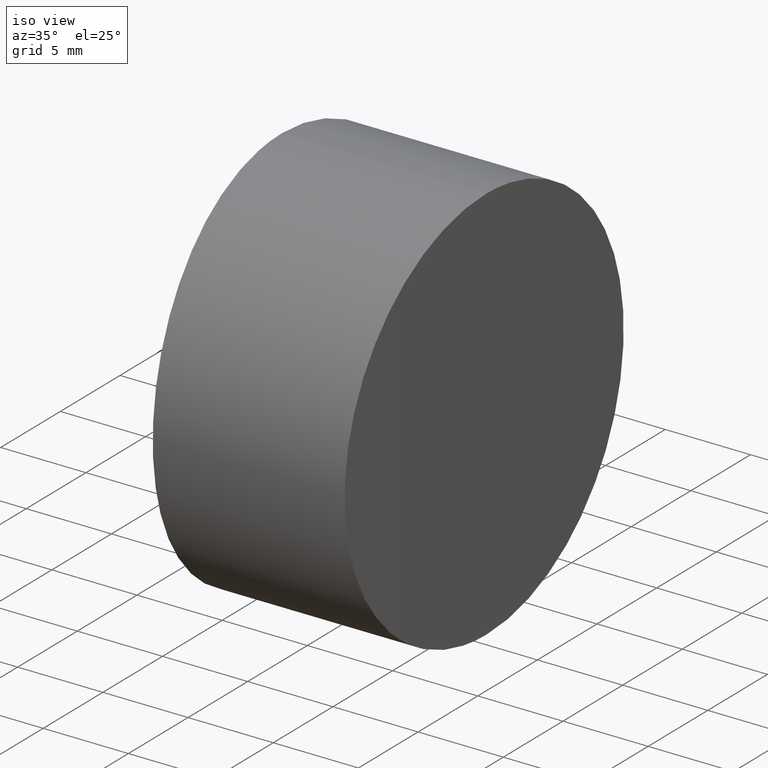
[diagram: clean part render]
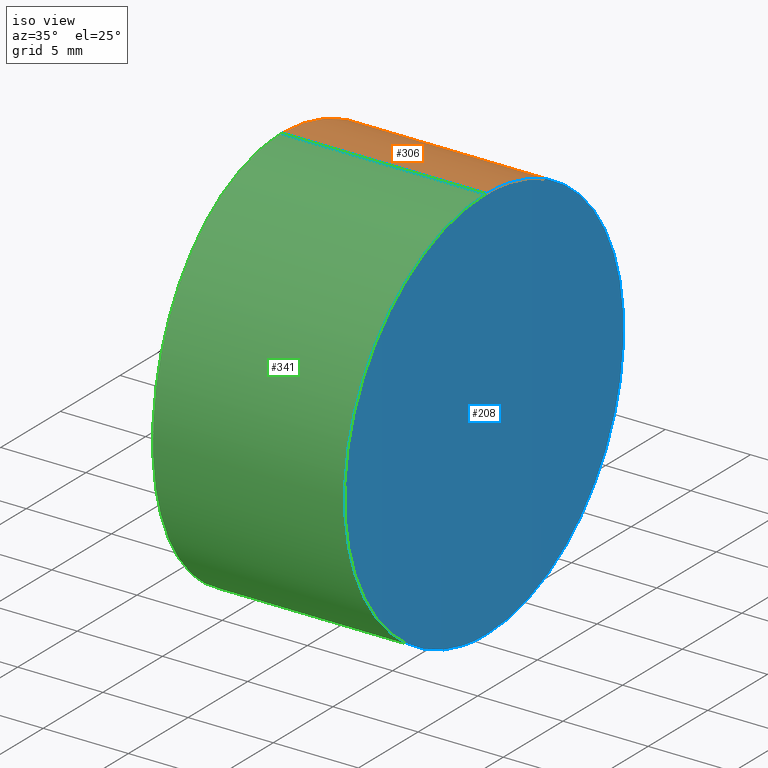
[diagram: same view with three faces highlighted in distinct colors, each labeled with its STEP entity id]
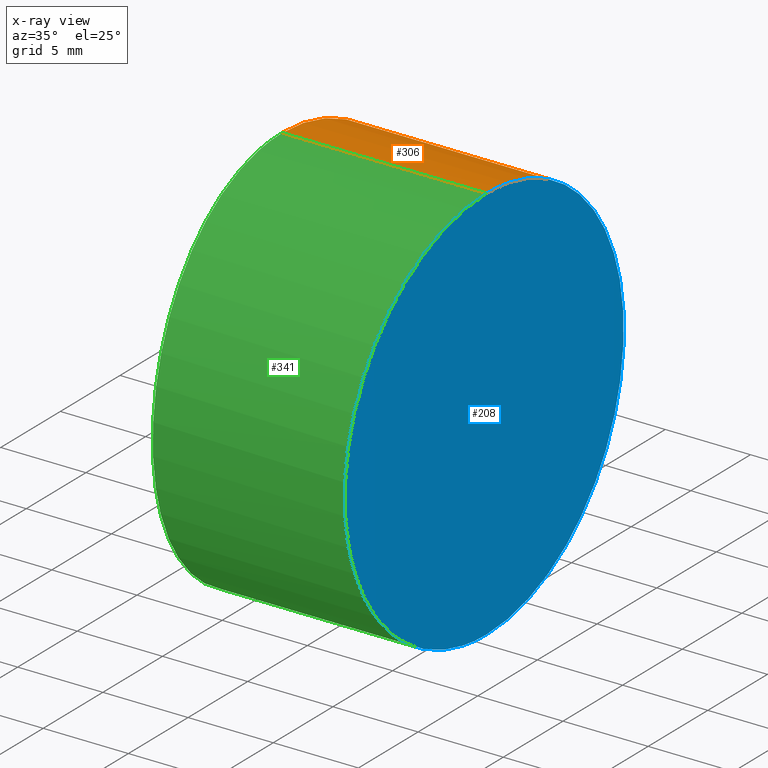
[diagram: x-ray of the same camera — body ghosted, the three highlighted faces saturated]
A machine part, iso view with three faces highlighted in distinct colors.
The next image is the same camera in x-ray (body ghosted, the three faces saturated) — at least one of them is partly hidden behind the body in this view.
Their STEP definitions:

[orange] entity #306 — the highlighted cylindrical surface (partial cylindrical patch) has radius 11.7 mm, axis along (-1, 0, 0).
#1 = CARTESIAN_POINT ( 'NONE',  ( 11.99599999999997202, 0.7725397565240768039, 23.40000000000000213 ) ) ;
#2 = CARTESIAN_POINT ( 'NONE',  ( 0.5737973138030529885, 11.30292195613088424, 14.74636833182847262 ) ) ;
#6 = CARTESIAN_POINT ( 'NONE',  ( 0.06337877766237934307, 3.778402862396142758, 0.6202854093300035343 ) ) ;
#8 = CARTESIAN_POINT ( 'NONE',  ( 0.3273140791562941243, 8.545349596066294851, 3.699234393658636488 ) ) ;
#10 = CARTESIAN_POINT ( 'NONE',  ( 0.5743786875526980529, 11.30862868015788081, 8.674717824732717020 ) ) ;
#11 = CARTESIAN_POINT ( 'NONE',  ( 0.2273798996619933732, 7.149076387608451100, 2.406366470140361535 ) ) ;
#15 = EDGE_CURVE ( 'NONE', #278, #195, #269, .T. ) ;
#16 = DIRECTION ( 'NONE',  ( -1.000000000000000000, 0.000000000000000000, 0.000000000000000000 ) ) ;
#20 = CARTESIAN_POINT ( 'NONE',  ( 11.90398045841742380, 10.13498726723373444, 5.841799124583882730 ) ) ;
#22 = CARTESIAN_POINT ( 'NONE',  ( 11.99599999999997380, -4.789638771403949645E-15, -2.369071757586284557E-15 ) ) ;
#24 = CARTESIAN_POINT ( 'NONE',  ( 0.000000000000000000, -6.222475526406026341E-15, 23.39999999999999858 ) ) ;
#26 = CARTESIAN_POINT ( 'NONE',  ( 11.94271932257831281, 7.716687466921808181, 2.897084106756884658 ) ) ;
#27 = CARTESIAN_POINT ( 'NONE',  ( 11.97202741192603703, 5.183311115676328740, 22.19617883732098207 ) ) ;
#31 = CARTESIAN_POINT ( 'NONE',  ( 11.91480729396639937, 9.520999784381023900, 18.51076620174705667 ) ) ;
#33 = CARTESIAN_POINT ( 'NONE',  ( 0.3871278063121803559, 9.290740602934338455, 4.578172488318455358 ) ) ;
#34 = CARTESIAN_POINT ( 'NONE',  ( 11.98333916979039948, 3.776663636491111919, 22.78030239349450881 ) ) ;
#35 = CARTESIAN_POINT ( 'NONE',  ( 0.5256403067937321927, 10.82181195297828680, 16.19583742725299658 ) ) ;
#37 = CARTESIAN_POINT ( 'NONE',  ( 0.6149949441801052519, 11.69999498929572290, 10.92683900690344245 ) ) ;
#48 = CARTESIAN_POINT ( 'NONE',  ( 11.90757653486620882, 9.935719535251672951, 5.509746624633043766 ) ) ;
#51 = B_SPLINE_CURVE_WITH_KNOTS ( 'NONE', 3,
 ( #108, #160, #217, #247, #360, #55, #187, #303, #85, #279, #166, #26, #140, #253, #111, #48, #20, #133, #102, #212, #333, #80, #168, #62, #224, #91, #86, #142, #291, #203, #170, #340, #31, #320, #174, #220, #59, #151, #282, #65, #27, #255, #34, #88, #176, #196, #1, #148 ),
 .UNSPECIFIED., .F., .F.,
 ( 4, 2, 2, 2, 2, 2, 2, 2, 2, 1, 2, 2, 2, 2, 2, 2, 2, 2, 2, 2, 2, 1, 2, 2, 4 ),
 ( 0.01827776316005818441, 0.02056248475154847169, 0.02170484554729361706, 0.02284720634303876591, 0.02513192793452905666, 0.02627428873027419856, 0.02741664952601934740, 0.02970137111750963121, 0.03084373191325477659, 0.03198609270899992196, 0.03312845350474506734, 0.03427081430049021271, 0.03655553589198050346, 0.03884025748347079421, 0.03998261827921593958, 0.04112497907496108496, 0.04340970066645139652, 0.04455206146219654884, 0.04569442225794170809, 0.04797914384943202659, 0.04912150464517718584, 0.05026386544092234510, 0.05140622623666751129, 0.05254858703241267054, 0.05483330862390298210 ),
 .UNSPECIFIED. ) ;
#55 = CARTESIAN_POINT ( 'NONE',  ( 11.98346471358924070, 3.758211395482323081, 0.6133799176573458967 ) ) ;
#59 = CARTESIAN_POINT ( 'NONE',  ( 11.94262049070419707, 7.736891645534131889, 20.50979077514487159 ) ) ;
#61 = CARTESIAN_POINT ( 'NONE',  ( 0.5834933890307848481, 11.39746447644347072, 14.37139931437171825 ) ) ;
#62 = CARTESIAN_POINT ( 'NONE',  ( 11.87332522033602267, 11.70000021381969546, 10.92746324778945777 ) ) ;
#65 = CARTESIAN_POINT ( 'NONE',  ( 11.96534983190749557, 5.858201829465710553, 21.83498671100081623 ) ) ;
#66 = CARTESIAN_POINT ( 'NONE',  ( 0.4960904767856388897, 10.51518821281334937, 6.512693130744789727 ) ) ;
#70 = CARTESIAN_POINT ( 'NONE',  ( -2.055594444541967625E-31, -3.072833831928743013E-46, -1.734723475976806503E-15 ) ) ;
#72 = VECTOR ( 'NONE', #266, 1000.000000000000000 ) ;
#80 = CARTESIAN_POINT ( 'NONE',  ( 11.87958782557957171, 11.39772510781595649, 9.029728223398075571 ) ) ;
#82 = CARTESIAN_POINT ( 'NONE',  ( 0.04040531924371081052, 3.025237654446266244, 23.00864073326368242 ) ) ;
#83 = EDGE_CURVE ( 'NONE', #280, #278, #327, .T. ) ;
#85 = CARTESIAN_POINT ( 'NONE',  ( 11.96561973362090647, 5.857267264834454146, 1.542918076929137294 ) ) ;
#86 = CARTESIAN_POINT ( 'NONE',  ( 11.87950856528107479, 11.40159553965203187, 14.35305943815102658 ) ) ;
#88 = CARTESIAN_POINT ( 'NONE',  ( 11.98781198108085277, 3.044934166123444808, 23.00330329056282963 ) ) ;
#90 = CARTESIAN_POINT ( 'NONE',  ( 0.4609519144994354001, 10.13438630305679489, 17.55922618700224191 ) ) ;
#91 = CARTESIAN_POINT ( 'NONE',  ( 11.87492878642814098, 11.62423571419591539, 13.23217655298421036 ) ) ;
#92 = CARTESIAN_POINT ( 'NONE',  ( 0.6069221283020238555, 11.62412117405784784, 10.16677220103204071 ) ) ;
#94 = CARTESIAN_POINT ( 'NONE',  ( -2.055594444541967625E-31, -3.072833831928743013E-46, -1.734723475976806503E-15 ) ) ;
#98 = CARTESIAN_POINT ( 'NONE',  ( 23.39999999999999858, -4.789638771403623845E-15, -1.734723475976807094E-15 ) ) ;
#102 = CARTESIAN_POINT ( 'NONE',  ( 11.89109414532582853, 10.82254087476991167, 7.205906465766929614 ) ) ;
#107 = CARTESIAN_POINT ( 'NONE',  ( 0.008026432231285398830, 1.533166390283013270, 23.32412978703163731 ) ) ;
#108 = CARTESIAN_POINT ( 'NONE',  ( 11.99599999999997380, -4.789638771403949645E-15, -2.369071757586284557E-15 ) ) ;
#111 = CARTESIAN_POINT ( 'NONE',  ( 11.91875679528292409, 9.294109272217841777, 4.551533662821857007 ) ) ;
#114 = CARTESIAN_POINT ( 'NONE',  ( 0.6149960005721273326, 11.70000501021279682, 12.47300933486380536 ) ) ;
#116 = CARTESIAN_POINT ( 'NONE',  ( 0.3868125775736650507, 9.293657995034429575, 18.84904481421364864 ) ) ;
#119 = CARTESIAN_POINT ( 'NONE',  ( 0.4622732054405332414, 10.15617069406081363, 5.841174931965708694 ) ) ;
#121 = CARTESIAN_POINT ( 'NONE',  ( 0.5838816696899639114, 11.40123753363525694, 9.045376139675610716 ) ) ;
#123 = CARTESIAN_POINT ( 'NONE',  ( 0.1713946055545053360, 6.191007934959581682, 1.764752137210390703 ) ) ;
#129 = AXIS2_PLACEMENT_3D ( 'NONE', #219, #361, #273 ) ;
#133 = CARTESIAN_POINT ( 'NONE',  ( 11.89730206266726142, 10.49617944193790109, 6.516690099332643982 ) ) ;
#139 = ORIENTED_EDGE ( 'NONE', *, *, #184, .T. ) ;
#140 = CARTESIAN_POINT ( 'NONE',  ( 11.93870887225387456, 8.000401393307521758, 3.154296160798732096 ) ) ;
#142 = CARTESIAN_POINT ( 'NONE',  ( 11.88139777683310250, 11.30908151481666657, 14.72356956865558608 ) ) ;
#147 = CARTESIAN_POINT ( 'NONE',  ( 0.1199926479446822986, 5.184805079346192613, 1.204567051443250936 ) ) ;
#148 = CARTESIAN_POINT ( 'NONE',  ( 11.99599999999997912, -6.222475526406300865E-15, 23.39999999999999858 ) ) ;
#151 = CARTESIAN_POINT ( 'NONE',  ( 11.95057481264189647, 7.148466782780948492, 20.99410890723043366 ) ) ;
#152 = CARTESIAN_POINT ( 'NONE',  ( 0.1520761672456583113, 5.858820299270028897, 21.85617409894140906 ) ) ;
#160 = CARTESIAN_POINT ( 'NONE',  ( 11.99599999999996669, 0.7725402960227728544, -2.248872474960167400E-15 ) ) ;
#166 = CARTESIAN_POINT ( 'NONE',  ( 11.95064600599947724, 7.120524461719379694, 2.408244241494708060 ) ) ;
#167 = ORIENTED_EDGE ( 'NONE', *, *, #332, .F. ) ;
#168 = CARTESIAN_POINT ( 'NONE',  ( 11.87492965161778891, 11.62422736631053688, 10.16334971013628063 ) ) ;
#169 = CARTESIAN_POINT ( 'NONE',  ( 0.6069197098082048658, 11.62413093387998586, 13.23748599553992378 ) ) ;
#170 = CARTESIAN_POINT ( 'NONE',  ( 11.89697546925137139, 10.51606566737220483, 16.88554112456827028 ) ) ;
#173 = CARTESIAN_POINT ( 'NONE',  ( 0.1534059246781156738, 5.859264353321527175, 1.565635800586186788 ) ) ;
#174 = CARTESIAN_POINT ( 'NONE',  ( 11.92661255968492817, 8.802915741319811360, 19.41668763324388891 ) ) ;
#176 = CARTESIAN_POINT ( 'NONE',  ( 11.98973869930236624, 2.670274013907736776, 23.09772457936528411 ) ) ;
#177 = CARTESIAN_POINT ( 'NONE',  ( 0.4429157776712662198, 9.935270681339371635, 17.89097138255328190 ) ) ;
#184 = EDGE_CURVE ( 'NONE', #252, #195, #206, .T. ) ;
#187 = CARTESIAN_POINT ( 'NONE',  ( 11.98087732478773404, 4.123353598562606415, 0.7439594889477127992 ) ) ;
#190 = CARTESIAN_POINT ( 'NONE',  ( 0.06275699762295681994, 3.760145786077522700, 22.78596959076442729 ) ) ;
#195 = VERTEX_POINT ( 'NONE', #70 ) ;
#196 = CARTESIAN_POINT ( 'NONE',  ( 11.99439593089994816, 1.536652947565582350, 23.32422699814540579 ) ) ;
#198 = CARTESIAN_POINT ( 'NONE',  ( 0.1183678632362983596, 5.187292682332098614, 22.21519600285960294 ) ) ;
#203 = CARTESIAN_POINT ( 'NONE',  ( 11.88845084197240531, 10.95603989601430861, 15.82335521944338730 ) ) ;
#204 = CARTESIAN_POINT ( 'NONE',  ( 0.5519240365361393064, 11.08595734901140162, 7.939818552040407873 ) ) ;
#205 = CARTESIAN_POINT ( 'NONE',  ( 0.4944676436467501102, 10.49545339342666672, 16.88476376669629886 ) ) ;
#206 = LINE ( 'NONE', #98, #259 ) ;
#210 = CARTESIAN_POINT ( 'NONE',  ( 23.39999999999999858, -6.222475526406026341E-15, 23.39999999999999858 ) ) ;
#212 = CARTESIAN_POINT ( 'NONE',  ( 11.88598854855823284, 11.08030300296945470, 7.923338137764759814 ) ) ;
#213 = ORIENTED_EDGE ( 'NONE', *, *, #15, .F. ) ;
#217 = CARTESIAN_POINT ( 'NONE',  ( 11.99439681065220675, 1.532173917041867561, 0.07576392102593272615 ) ) ;
#219 = CARTESIAN_POINT ( 'NONE',  ( 23.39999999999999858, -6.222475526406026341E-15, 11.69999999999999751 ) ) ;
#220 = CARTESIAN_POINT ( 'NONE',  ( 11.93062309603917726, 8.545703775219315901, 19.70040145526104780 ) ) ;
#221 = CARTESIAN_POINT ( 'NONE',  ( 0.000000000000000000, -6.222475526406026341E-15, 23.39999999999999858 ) ) ;
#224 = CARTESIAN_POINT ( 'NONE',  ( 11.87332522930464940, 11.69999978617939718, 12.47254322875745203 ) ) ;
#225 = CARTESIAN_POINT ( 'NONE',  ( 0.3474066096523754088, 8.802339859386306031, 3.982675265545966958 ) ) ;
#227 = CARTESIAN_POINT ( 'NONE',  ( 0.008030562997225647315, 1.537548285531460834, 0.07587763814504160098 ) ) ;
#229 = CARTESIAN_POINT ( 'NONE',  ( 0.2667514044845861187, 7.717340259284535264, 20.50232647232457950 ) ) ;
#232 = CARTESIAN_POINT ( 'NONE',  ( 0.04098654489845087595, 3.046419870238549876, 0.3970919858876711395 ) ) ;
#247 = CARTESIAN_POINT ( 'NONE',  ( 11.98981796516360276, 2.653057236933517693, 0.2984039437234430325 ) ) ;
#250 = CYLINDRICAL_SURFACE ( 'NONE', #129, 11.70000000000000107 ) ;
#252 = VERTEX_POINT ( 'NONE', #22 ) ;
#253 = CARTESIAN_POINT ( 'NONE',  ( 11.92671147525491193, 8.809790994486569105, 3.963108577796356613 ) ) ;
#255 = CARTESIAN_POINT ( 'NONE',  ( 11.97823457999691499, 4.494094951549543637, 22.52254007766320143 ) ) ;
#259 = VECTOR ( 'NONE', #16, 1000.000000000000000 ) ;
#263 = CARTESIAN_POINT ( 'NONE',  ( 0.4065925144657915324, 9.520096840979629604, 4.887976458896287291 ) ) ;
#264 = CARTESIAN_POINT ( 'NONE',  ( 0.2672154664083368214, 7.737152638149702888, 2.890489850145211204 ) ) ;
#266 = DIRECTION ( 'NONE',  ( -1.000000000000000000, 0.000000000000000000, 0.000000000000000000 ) ) ;
#269 = B_SPLINE_CURVE_WITH_KNOTS ( 'NONE', 3,
 ( #221, #338, #107, #335, #82, #190, #309, #198, #152, #321, #323, #229, #288, #345, #116, #177, #90, #205, #35, #293, #2, #61, #169, #114, #37, #92, #121, #10, #204, #286, #66, #119, #263, #33, #225, #8, #264, #11, #123, #173, #147, #315, #6, #232, #348, #227, #318, #94 ),
 .UNSPECIFIED., .F., .F.,
 ( 4, 2, 2, 2, 2, 2, 2, 2, 2, 1, 2, 2, 2, 2, 2, 2, 2, 2, 2, 2, 2, 1, 2, 2, 4 ),
 ( -0.03657917822603388991, -0.03429297958690676745, -0.03314988026734320969, -0.03200678094777965194, -0.02972058230865253642, -0.02857748298908897866, -0.02743438366952542090, -0.02514818503039830538, -0.02400508571083474763, -0.02286198639127118987, -0.02171888707170763211, -0.02057578775214407435, -0.01828958911301696230, -0.01600339047388984678, -0.01486029115432628556, -0.01371719183476272433, -0.01143099319563560881, -0.01028789387607204411, -0.009144794556508486355, -0.006858595917381367368, -0.005715496597817806140, -0.004572397278254244912, -0.003429297958690687154, -0.002286198639127129395, -6.938893903907228378E-18 ),
 .UNSPECIFIED. ) ;
#273 = DIRECTION ( 'NONE',  ( 0.000000000000000000, 0.000000000000000000, 1.000000000000000000 ) ) ;
#278 = VERTEX_POINT ( 'NONE', #24 ) ;
#279 = CARTESIAN_POINT ( 'NONE',  ( 11.95452399806965893, 6.810765688873178014, 2.178999843389016977 ) ) ;
#280 = VERTEX_POINT ( 'NONE', #363 ) ;
#282 = CARTESIAN_POINT ( 'NONE',  ( 11.96175413356079886, 6.190254202528551630, 21.63571901470010417 ) ) ;
#286 = CARTESIAN_POINT ( 'NONE',  ( 0.5389165305835492692, 10.95529744053118293, 7.574676750099633260 ) ) ;
#288 = CARTESIAN_POINT ( 'NONE',  ( 0.2868331750334933705, 8.000783811261294787, 20.24533271152229830 ) ) ;
#291 = CARTESIAN_POINT ( 'NONE',  ( 11.88586300695326337, 11.08661947606188924, 15.45821317094621072 ) ) ;
#293 = CARTESIAN_POINT ( 'NONE',  ( 0.5513023669513080760, 11.07973089369520459, 15.47835520866540904 ) ) ;
#303 = CARTESIAN_POINT ( 'NONE',  ( 11.97235402187564013, 5.185539960618275046, 1.183933737788525287 ) ) ;
#306 = ADVANCED_FACE ( 'NONE', ( #337 ), #250, .T. ) ;
#309 = CARTESIAN_POINT ( 'NONE',  ( 0.07570835377631106311, 4.125293002083420646, 22.65530902049979289 ) ) ;
#315 = CARTESIAN_POINT ( 'NONE',  ( 0.08893099164742235274, 4.495881703686920972, 0.8782065833166714519 ) ) ;
#318 = CARTESIAN_POINT ( 'NONE',  ( -5.209252625613947702E-17, 0.7730793724691743529, -1.822814902491254724E-15 ) ) ;
#320 = CARTESIAN_POINT ( 'NONE',  ( 11.91868553758603255, 9.291755447810109203, 18.82052485958207200 ) ) ;
#321 = CARTESIAN_POINT ( 'NONE',  ( 0.2076395379942405917, 6.812029464572748161, 21.22009277688928108 ) ) ;
#323 = CARTESIAN_POINT ( 'NONE',  ( 0.2270725911171063149, 7.121835755371192178, 20.99073449607061548 ) ) ;
#327 = LINE ( 'NONE', #210, #72 ) ;
#332 = EDGE_CURVE ( 'NONE', #252, #280, #51, .T. ) ;
#333 = CARTESIAN_POINT ( 'NONE',  ( 11.88151492159222933, 11.30330385409248706, 8.655067908584159753 ) ) ;
#335 = CARTESIAN_POINT ( 'NONE',  ( 0.03094927156193011397, 2.654574998565959909, 23.10124904115776445 ) ) ;
#337 = FACE_OUTER_BOUND ( 'NONE', #366, .T. ) ;
#338 = CARTESIAN_POINT ( 'NONE',  ( -4.065758146820648407E-17, 0.7730918758208543684, 23.40000000000000568 ) ) ;
#340 = CARTESIAN_POINT ( 'NONE',  ( 11.90371062468263297, 10.15708139134993360, 17.55726815210538660 ) ) ;
#345 = CARTESIAN_POINT ( 'NONE',  ( 0.3469321303991260153, 8.809534016637973863, 19.43712617128055342 ) ) ;
#348 = CARTESIAN_POINT ( 'NONE',  ( 0.03133808555167956478, 2.671453100887954957, 0.3025482153603555324 ) ) ;
#360 = CARTESIAN_POINT ( 'NONE',  ( 11.98792912613104455, 3.023567510556006255, 0.3909179305990184150 ) ) ;
#361 = DIRECTION ( 'NONE',  ( -1.000000000000000000, 0.000000000000000000, 0.000000000000000000 ) ) ;
#363 = CARTESIAN_POINT ( 'NONE',  ( 11.99599999999997912, -6.222475526406300865E-15, 23.39999999999999858 ) ) ;
#364 = ORIENTED_EDGE ( 'NONE', *, *, #83, .F. ) ;
#366 = EDGE_LOOP ( 'NONE', ( #167, #139, #213, #364 ) ) ;

[blue] entity #208 — the highlighted cylindrical surface (partial cylindrical patch) has radius 558 mm, axis along (-0, -0, -1).
#1 = CARTESIAN_POINT ( 'NONE',  ( 11.99599999999997202, 0.7725397565240768039, 23.40000000000000213 ) ) ;
#13 = CARTESIAN_POINT ( 'NONE',  ( 11.95057475848481410, -7.148471030700476625, 2.405894319239103130 ) ) ;
#17 = CARTESIAN_POINT ( 'NONE',  ( 11.88845077296364217, -10.95604340766396767, 7.576654083049817245 ) ) ;
#20 = CARTESIAN_POINT ( 'NONE',  ( 11.90398045841742380, 10.13498726723373444, 5.841799124583882730 ) ) ;
#22 = CARTESIAN_POINT ( 'NONE',  ( 11.99599999999997380, -4.789638771403949645E-15, -2.369071757586284557E-15 ) ) ;
#26 = CARTESIAN_POINT ( 'NONE',  ( 11.94271932257831281, 7.716687466921808181, 2.897084106756884658 ) ) ;
#27 = CARTESIAN_POINT ( 'NONE',  ( 11.97202741192603703, 5.183311115676328740, 22.19617883732098207 ) ) ;
#28 = CARTESIAN_POINT ( 'NONE',  ( 11.99439681289037374, -1.532172855899809560, 23.32423618378562225 ) ) ;
#30 = CARTESIAN_POINT ( 'NONE',  ( 11.94271938393290533, -7.716683028155985724, 20.50291977378834929 ) ) ;
#31 = CARTESIAN_POINT ( 'NONE',  ( 11.91480729396639937, 9.520999784381023900, 18.51076620174705667 ) ) ;
#34 = CARTESIAN_POINT ( 'NONE',  ( 11.98333916979039948, 3.776663636491111919, 22.78030239349450881 ) ) ;
#43 = CARTESIAN_POINT ( 'NONE',  ( 11.98333915284843165, -3.776666161459356186, 0.6196984581650136770 ) ) ;
#47 = CARTESIAN_POINT ( 'NONE',  ( 11.99599999999997380, -4.789638771403949645E-15, -2.369071757586284557E-15 ) ) ;
#48 = CARTESIAN_POINT ( 'NONE',  ( 11.90757653486620882, 9.935719535251672951, 5.509746624633043766 ) ) ;
#51 = B_SPLINE_CURVE_WITH_KNOTS ( 'NONE', 3,
 ( #108, #160, #217, #247, #360, #55, #187, #303, #85, #279, #166, #26, #140, #253, #111, #48, #20, #133, #102, #212, #333, #80, #168, #62, #224, #91, #86, #142, #291, #203, #170, #340, #31, #320, #174, #220, #59, #151, #282, #65, #27, #255, #34, #88, #176, #196, #1, #148 ),
 .UNSPECIFIED., .F., .F.,
 ( 4, 2, 2, 2, 2, 2, 2, 2, 2, 1, 2, 2, 2, 2, 2, 2, 2, 2, 2, 2, 2, 1, 2, 2, 4 ),
 ( 0.01827776316005818441, 0.02056248475154847169, 0.02170484554729361706, 0.02284720634303876591, 0.02513192793452905666, 0.02627428873027419856, 0.02741664952601934740, 0.02970137111750963121, 0.03084373191325477659, 0.03198609270899992196, 0.03312845350474506734, 0.03427081430049021271, 0.03655553589198050346, 0.03884025748347079421, 0.03998261827921593958, 0.04112497907496108496, 0.04340970066645139652, 0.04455206146219654884, 0.04569442225794170809, 0.04797914384943202659, 0.04912150464517718584, 0.05026386544092234510, 0.05140622623666751129, 0.05254858703241267054, 0.05483330862390298210 ),
 .UNSPECIFIED. ) ;
#53 = DIRECTION ( 'NONE',  ( -0.000000000000000000, -0.000000000000000000, -1.000000000000000000 ) ) ;
#55 = CARTESIAN_POINT ( 'NONE',  ( 11.98346471358924070, 3.758211395482323081, 0.6133799176573458967 ) ) ;
#59 = CARTESIAN_POINT ( 'NONE',  ( 11.94262049070419707, 7.736891645534131889, 20.50979077514487159 ) ) ;
#60 = CARTESIAN_POINT ( 'NONE',  ( 11.96561977217007566, -5.857263560972508110, 21.85708401687947600 ) ) ;
#62 = CARTESIAN_POINT ( 'NONE',  ( 11.87332522033602267, 11.70000021381969546, 10.92746324778945777 ) ) ;
#64 = CARTESIAN_POINT ( 'NONE',  ( 11.88598861365595383, -11.08029972772961713, 15.47667144109250614 ) ) ;
#65 = CARTESIAN_POINT ( 'NONE',  ( 11.96534983190749557, 5.858201829465710553, 21.83498671100081623 ) ) ;
#71 = EDGE_CURVE ( 'NONE', #280, #252, #351, .T. ) ;
#74 = CARTESIAN_POINT ( 'NONE',  ( 11.89697539295676343, -10.51606970518925621, 6.514466974226517770 ) ) ;
#80 = CARTESIAN_POINT ( 'NONE',  ( 11.87958782557957171, 11.39772510781595649, 9.029728223398075571 ) ) ;
#85 = CARTESIAN_POINT ( 'NONE',  ( 11.96561973362090647, 5.857267264834454146, 1.542918076929137294 ) ) ;
#86 = CARTESIAN_POINT ( 'NONE',  ( 11.87950856528107479, 11.40159553965203187, 14.35305943815102658 ) ) ;
#87 = CARTESIAN_POINT ( 'NONE',  ( 11.98087734514142966, -4.123350827409984376, 22.65604154504486445 ) ) ;
#88 = CARTESIAN_POINT ( 'NONE',  ( 11.98781198108085277, 3.044934166123444808, 23.00330329056282963 ) ) ;
#89 = CARTESIAN_POINT ( 'NONE',  ( 11.90757661378781052, -9.935715104725126423, 17.89026046767306255 ) ) ;
#91 = CARTESIAN_POINT ( 'NONE',  ( 11.87492878642814098, 11.62423571419591539, 13.23217655298421036 ) ) ;
#102 = CARTESIAN_POINT ( 'NONE',  ( 11.89109414532582853, 10.82254087476991167, 7.205906465766929614 ) ) ;
#106 = DIRECTION ( 'NONE',  ( -1.000000000000000000, 0.000000000000000000, 0.000000000000000000 ) ) ;
#108 = CARTESIAN_POINT ( 'NONE',  ( 11.99599999999997380, -4.789638771403949645E-15, -2.369071757586284557E-15 ) ) ;
#111 = CARTESIAN_POINT ( 'NONE',  ( 11.91875679528292409, 9.294109272217841777, 4.551533662821857007 ) ) ;
#112 = ORIENTED_EDGE ( 'NONE', *, *, #332, .T. ) ;
#125 = CARTESIAN_POINT ( 'NONE',  ( 11.93062302609523151, -8.545708343312275801, 3.699603410915011548 ) ) ;
#130 = CARTESIAN_POINT ( 'NONE',  ( 11.87950851448232825, -11.40159802326301985, 9.046951198491310464 ) ) ;
#133 = CARTESIAN_POINT ( 'NONE',  ( 11.89730206266726142, 10.49617944193790109, 6.516690099332643982 ) ) ;
#140 = CARTESIAN_POINT ( 'NONE',  ( 11.93870887225387456, 8.000401393307521758, 3.154296160798732096 ) ) ;
#142 = CARTESIAN_POINT ( 'NONE',  ( 11.88139777683310250, 11.30908151481666657, 14.72356956865558608 ) ) ;
#143 = CARTESIAN_POINT ( 'NONE',  ( 11.98981797363723878, -2.653055419219351396, 23.10159647030833696 ) ) ;
#144 = CARTESIAN_POINT ( 'NONE',  ( 11.93870893661147292, -8.000396903956412231, 20.24570803073852332 ) ) ;
#148 = CARTESIAN_POINT ( 'NONE',  ( 11.99599999999997912, -6.222475526406300865E-15, 23.39999999999999858 ) ) ;
#149 = CARTESIAN_POINT ( 'NONE',  ( 11.87492968465443610, -11.62422578908356030, 13.23666198342918499 ) ) ;
#151 = CARTESIAN_POINT ( 'NONE',  ( 11.95057481264189647, 7.148466782780948492, 20.99410890723043366 ) ) ;
#157 = CARTESIAN_POINT ( 'NONE',  ( 11.98973869066553988, -2.670275855210034077, 0.3022758427637812217 ) ) ;
#160 = CARTESIAN_POINT ( 'NONE',  ( 11.99599999999996669, 0.7725402960227728544, -2.248872474960167400E-15 ) ) ;
#165 = EDGE_LOOP ( 'NONE', ( #254, #112 ) ) ;
#166 = CARTESIAN_POINT ( 'NONE',  ( 11.95064600599947724, 7.120524461719379694, 2.408244241494708060 ) ) ;
#168 = CARTESIAN_POINT ( 'NONE',  ( 11.87492965161778891, 11.62422736631053688, 10.16334971013628063 ) ) ;
#170 = CARTESIAN_POINT ( 'NONE',  ( 11.89697546925137139, 10.51606566737220483, 16.88554112456827028 ) ) ;
#171 = CARTESIAN_POINT ( 'NONE',  ( 11.95064606089182924, -7.120520157623777102, 20.99175904690054395 ) ) ;
#174 = CARTESIAN_POINT ( 'NONE',  ( 11.92661255968492817, 8.802915741319811360, 19.41668763324388891 ) ) ;
#175 = CARTESIAN_POINT ( 'NONE',  ( 11.88151497833613668, -11.30330105580599387, 14.74494244150919542 ) ) ;
#176 = CARTESIAN_POINT ( 'NONE',  ( 11.98973869930236624, 2.670274013907736776, 23.09772457936528411 ) ) ;
#180 = CARTESIAN_POINT ( 'NONE',  ( 11.91480721674348153, -9.521004307748297535, 4.889240107866277718 ) ) ;
#183 = CARTESIAN_POINT ( 'NONE',  ( 11.91868546067978407, -9.291760065896241372, 4.579481150061554651 ) ) ;
#186 = CARTESIAN_POINT ( 'NONE',  ( 11.94262042951301517, -7.736896065250163268, 2.890213058086191111 ) ) ;
#187 = CARTESIAN_POINT ( 'NONE',  ( 11.98087732478773404, 4.123353598562606415, 0.7439594889477127992 ) ) ;
#196 = CARTESIAN_POINT ( 'NONE',  ( 11.99439593089994816, 1.536652947565582350, 23.32422699814540579 ) ) ;
#200 = CARTESIAN_POINT ( 'NONE',  ( 11.89730213834091188, -10.49617542213157684, 16.88331802317707186 ) ) ;
#202 = CARTESIAN_POINT ( 'NONE',  ( 11.91875687167021169, -9.294104691331479984, 18.84847222741791839 ) ) ;
#203 = CARTESIAN_POINT ( 'NONE',  ( 11.88845084197240531, 10.95603989601430861, 15.82335521944338730 ) ) ;
#207 = CARTESIAN_POINT ( 'NONE',  ( 11.87332523826647801, -11.69999935887490317, 12.47254912580081943 ) ) ;
#208 = ADVANCED_FACE ( 'NONE', ( #251 ), #215, .T. ) ;
#209 = CARTESIAN_POINT ( 'NONE',  ( 11.88586294147259359, -11.08662276848864003, 7.941796518671254468 ) ) ;
#212 = CARTESIAN_POINT ( 'NONE',  ( 11.88598854855823284, 11.08030300296945470, 7.923338137764759814 ) ) ;
#215 = CYLINDRICAL_SURFACE ( 'NONE', #297, 558.0000000000001137 ) ;
#217 = CARTESIAN_POINT ( 'NONE',  ( 11.99439681065220675, 1.532173917041867561, 0.07576392102593272615 ) ) ;
#220 = CARTESIAN_POINT ( 'NONE',  ( 11.93062309603917726, 8.545703775219315901, 19.70040145526104780 ) ) ;
#223 = CARTESIAN_POINT ( 'NONE',  ( 11.99599999999998801, -0.7725397565241870490, 23.40000000000000568 ) ) ;
#224 = CARTESIAN_POINT ( 'NONE',  ( 11.87332522930464940, 11.69999978617939718, 12.47254322875745203 ) ) ;
#239 = CARTESIAN_POINT ( 'NONE',  ( 11.97823455657205116, -4.494097908365671579, 0.8774611221614188050 ) ) ;
#241 = CARTESIAN_POINT ( 'NONE',  ( 11.99439592865945592, -1.536654014908250820, 0.07577310665689339364 ) ) ;
#247 = CARTESIAN_POINT ( 'NONE',  ( 11.98981796516360276, 2.653057236933517693, 0.2984039437234430325 ) ) ;
#251 = FACE_OUTER_BOUND ( 'NONE', #165, .T. ) ;
#252 = VERTEX_POINT ( 'NONE', #22 ) ;
#253 = CARTESIAN_POINT ( 'NONE',  ( 11.92671147525491193, 8.809790994486569105, 3.963108577796356613 ) ) ;
#254 = ORIENTED_EDGE ( 'NONE', *, *, #71, .T. ) ;
#255 = CARTESIAN_POINT ( 'NONE',  ( 11.97823457999691499, 4.494094951549543637, 22.52254007766320143 ) ) ;
#256 = CARTESIAN_POINT ( 'NONE',  ( 11.98346473061616635, -3.758208843705220570, 22.78662093773627362 ) ) ;
#258 = CARTESIAN_POINT ( 'NONE',  ( 11.95452404853288009, -6.810761547977477903, 21.22100310753823038 ) ) ;
#261 = CARTESIAN_POINT ( 'NONE',  ( 11.90398053665032485, -10.13498296323749770, 17.55820830599570215 ) ) ;
#268 = CARTESIAN_POINT ( 'NONE',  ( 11.87332521137485131, -11.70000064111705207, 10.92747029357478539 ) ) ;
#270 = CARTESIAN_POINT ( 'NONE',  ( 11.88139772070203115, -11.30908428122998899, 8.676440750063079577 ) ) ;
#271 = CARTESIAN_POINT ( 'NONE',  ( 11.96175409037635440, -6.190258101028966564, 1.764283404649446441 ) ) ;
#272 = CARTESIAN_POINT ( 'NONE',  ( 11.87492875369963485, -11.62423727709765764, 10.16783504974804586 ) ) ;
#279 = CARTESIAN_POINT ( 'NONE',  ( 11.95452399806965893, 6.810765688873178014, 2.178999843389016977 ) ) ;
#280 = VERTEX_POINT ( 'NONE', #363 ) ;
#282 = CARTESIAN_POINT ( 'NONE',  ( 11.96175413356079886, 6.190254202528551630, 21.63571901470010417 ) ) ;
#283 = CARTESIAN_POINT ( 'NONE',  ( 11.99599999999997912, -6.222475526406300865E-15, 23.39999999999999858 ) ) ;
#291 = CARTESIAN_POINT ( 'NONE',  ( 11.88586300695326337, 11.08661947606188924, 15.45821317094621072 ) ) ;
#292 = CARTESIAN_POINT ( 'NONE',  ( 11.87958787737492372, -11.39772257471670791, 14.37028255462251281 ) ) ;
#297 = AXIS2_PLACEMENT_3D ( 'NONE', #308, #53, #106 ) ;
#300 = CARTESIAN_POINT ( 'NONE',  ( 11.96534979295983447, -5.858205549772491416, 1.565015428806951325 ) ) ;
#301 = CARTESIAN_POINT ( 'NONE',  ( 11.90371054665027550, -10.15708567072837099, 5.842739204771569383 ) ) ;
#302 = CARTESIAN_POINT ( 'NONE',  ( 11.97202738092527063, -5.183314464960941059, 1.203822806419805325 ) ) ;
#303 = CARTESIAN_POINT ( 'NONE',  ( 11.97235402187564013, 5.185539960618275046, 1.183933737788525287 ) ) ;
#308 = CARTESIAN_POINT ( 'NONE',  ( -546.0040000000000191, -5.521782608315249880E-12, 23.39999999999999858 ) ) ;
#314 = CARTESIAN_POINT ( 'NONE',  ( 11.97235405259456087, -5.185536601669927137, 22.21606788126373289 ) ) ;
#320 = CARTESIAN_POINT ( 'NONE',  ( 11.91868553758603255, 9.291755447810109203, 18.82052485958207200 ) ) ;
#325 = CARTESIAN_POINT ( 'NONE',  ( 11.92661248712507138, -8.802920340448922687, 3.983317597942529709 ) ) ;
#329 = CARTESIAN_POINT ( 'NONE',  ( 11.98781196991093978, -3.044936240147400941, 0.3966972593608762976 ) ) ;
#330 = CARTESIAN_POINT ( 'NONE',  ( 11.99599999999997912, -0.7725402960228759941, -2.483500601349607016E-15 ) ) ;
#332 = EDGE_CURVE ( 'NONE', #252, #280, #51, .T. ) ;
#333 = CARTESIAN_POINT ( 'NONE',  ( 11.88151492159222933, 11.30330385409248706, 8.655067908584159753 ) ) ;
#339 = CARTESIAN_POINT ( 'NONE',  ( 11.98792913716336805, -3.023565445028140175, 23.00908261220105899 ) ) ;
#340 = CARTESIAN_POINT ( 'NONE',  ( 11.90371062468263297, 10.15708139134993360, 17.55726815210538660 ) ) ;
#342 = CARTESIAN_POINT ( 'NONE',  ( 11.92671154761925401, -8.809786407615135317, 19.43689659502161859 ) ) ;
#344 = CARTESIAN_POINT ( 'NONE',  ( 11.89109421715166803, -10.82253717976190543, 16.19410236538043080 ) ) ;
#351 = B_SPLINE_CURVE_WITH_KNOTS ( 'NONE', 3,
 ( #283, #223, #28, #143, #339, #256, #87, #314, #60, #258, #171, #30, #144, #342, #202, #89, #261, #200, #344, #64, #175, #292, #149, #207, #268, #272, #130, #270, #209, #17, #74, #301, #180, #183, #325, #125, #186, #13, #271, #300, #302, #239, #43, #329, #157, #241, #330, #47 ),
 .UNSPECIFIED., .F., .F.,
 ( 4, 2, 2, 2, 2, 2, 2, 2, 2, 1, 2, 2, 2, 2, 2, 2, 2, 2, 2, 2, 2, 1, 2, 2, 4 ),
 ( 0.05483330862390298210, 0.05711803021539356429, 0.05826039101113885538, 0.05940275180688414647, 0.06168747339837472171, 0.06282983419411999892, 0.06397219498986529695, 0.06625691658135587914, 0.06739927737710116329, 0.06854163817284646132, 0.06968399896859175935, 0.07082635976433704350, 0.07311108135582763956, 0.07539580294731820787, 0.07653816374306350589, 0.07768052453880880392, 0.07996524613029937223, 0.08110760692604467026, 0.08224996772178995441, 0.08453468931328053659, 0.08567705010902582075, 0.08681941090477110490, 0.08796177170051638905, 0.08910413249626167320, 0.09138885408775224151 ),
 .UNSPECIFIED. ) ;
#360 = CARTESIAN_POINT ( 'NONE',  ( 11.98792912613104455, 3.023567510556006255, 0.3909179305990184150 ) ) ;
#363 = CARTESIAN_POINT ( 'NONE',  ( 11.99599999999997912, -6.222475526406300865E-15, 23.39999999999999858 ) ) ;

[green] entity #341 — the highlighted cylindrical surface (partial cylindrical patch) has radius 11.7 mm, axis along (-1, 0, 0).
#9 = CYLINDRICAL_SURFACE ( 'NONE', #296, 11.70000000000000107 ) ;
#13 = CARTESIAN_POINT ( 'NONE',  ( 11.95057475848481410, -7.148471030700476625, 2.405894319239103130 ) ) ;
#14 = CARTESIAN_POINT ( 'NONE',  ( 0.1183678632362985539, -5.187292682332105720, 1.184803997140385645 ) ) ;
#16 = DIRECTION ( 'NONE',  ( -1.000000000000000000, 0.000000000000000000, 0.000000000000000000 ) ) ;
#17 = CARTESIAN_POINT ( 'NONE',  ( 11.88845077296364217, -10.95604340766396767, 7.576654083049817245 ) ) ;
#18 = CARTESIAN_POINT ( 'NONE',  ( 0.3469321303991318994, -8.809534016637980969, 3.962873828719445157 ) ) ;
#22 = CARTESIAN_POINT ( 'NONE',  ( 11.99599999999997380, -4.789638771403949645E-15, -2.369071757586284557E-15 ) ) ;
#24 = CARTESIAN_POINT ( 'NONE',  ( 0.000000000000000000, -6.222475526406026341E-15, 23.39999999999999858 ) ) ;
#25 = CARTESIAN_POINT ( 'NONE',  ( 0.4065925144657912549, -9.520096840979649144, 18.51202354110370862 ) ) ;
#28 = CARTESIAN_POINT ( 'NONE',  ( 11.99439681289037374, -1.532172855899809560, 23.32423618378562225 ) ) ;
#30 = CARTESIAN_POINT ( 'NONE',  ( 11.94271938393290533, -7.716683028155985724, 20.50291977378834929 ) ) ;
#40 = CARTESIAN_POINT ( 'NONE',  ( 0.2270725911171075917, -7.121835755371203724, 2.409265503929381325 ) ) ;
#43 = CARTESIAN_POINT ( 'NONE',  ( 11.98333915284843165, -3.776666161459356186, 0.6196984581650136770 ) ) ;
#45 = CARTESIAN_POINT ( 'NONE',  ( 0.4429157776712663308, -9.935270681339382293, 5.509028617446702469 ) ) ;
#47 = CARTESIAN_POINT ( 'NONE',  ( 11.99599999999997380, -4.789638771403949645E-15, -2.369071757586284557E-15 ) ) ;
#49 = CARTESIAN_POINT ( 'NONE',  ( 0.008030562997224557908, -1.537548285531460834, 23.32412236185496468 ) ) ;
#56 = CARTESIAN_POINT ( 'NONE',  ( 0.2273798996619920687, -7.149076387608455541, 20.99363352985964326 ) ) ;
#60 = CARTESIAN_POINT ( 'NONE',  ( 11.96561977217007566, -5.857263560972508110, 21.85708401687947600 ) ) ;
#64 = CARTESIAN_POINT ( 'NONE',  ( 11.88598861365595383, -11.08029972772961713, 15.47667144109250614 ) ) ;
#68 = CARTESIAN_POINT ( 'NONE',  ( 0.5838816696899644665, -11.40123753363526937, 14.35462386032439319 ) ) ;
#70 = CARTESIAN_POINT ( 'NONE',  ( -2.055594444541967625E-31, -3.072833831928743013E-46, -1.734723475976806503E-15 ) ) ;
#71 = EDGE_CURVE ( 'NONE', #280, #252, #351, .T. ) ;
#72 = VECTOR ( 'NONE', #266, 1000.000000000000000 ) ;
#74 = CARTESIAN_POINT ( 'NONE',  ( 11.89697539295676343, -10.51606970518925621, 6.514466974226517770 ) ) ;
#76 = CARTESIAN_POINT ( 'NONE',  ( 0.6149960005721289980, -11.70000501021281103, 10.92699066513619499 ) ) ;
#81 = CARTESIAN_POINT ( 'NONE',  ( 0.3273140791562932916, -8.545349596066305509, 19.70076560634137053 ) ) ;
#83 = EDGE_CURVE ( 'NONE', #280, #278, #327, .T. ) ;
#87 = CARTESIAN_POINT ( 'NONE',  ( 11.98087734514142966, -4.123350827409984376, 22.65604154504486445 ) ) ;
#89 = CARTESIAN_POINT ( 'NONE',  ( 11.90757661378781052, -9.935715104725126423, 17.89026046767306255 ) ) ;
#98 = CARTESIAN_POINT ( 'NONE',  ( 23.39999999999999858, -4.789638771403623845E-15, -1.734723475976807094E-15 ) ) ;
#99 = CARTESIAN_POINT ( 'NONE',  ( 0.07570835377631118801, -4.125293002083425087, 0.7446909795001992460 ) ) ;
#100 = CARTESIAN_POINT ( 'NONE',  ( 0.4944676436467626002, -10.49545339342668093, 6.515236233303700608 ) ) ;
#101 = CARTESIAN_POINT ( 'NONE',  ( 0.6149949441801070282, -11.69999498929573534, 12.47316099309656146 ) ) ;
#103 = ORIENTED_EDGE ( 'NONE', *, *, #83, .T. ) ;
#113 = CARTESIAN_POINT ( 'NONE',  ( 23.39999999999999858, -6.222475526406026341E-15, 11.69999999999999751 ) ) ;
#120 = DIRECTION ( 'NONE',  ( -1.000000000000000000, 0.000000000000000000, 0.000000000000000000 ) ) ;
#125 = CARTESIAN_POINT ( 'NONE',  ( 11.93062302609523151, -8.545708343312275801, 3.699603410915011548 ) ) ;
#127 = CARTESIAN_POINT ( 'NONE',  ( 0.1520761672456586722, -5.858820299270034226, 1.543825901058585082 ) ) ;
#128 = CARTESIAN_POINT ( 'NONE',  ( 0.04040531924371108807, -3.025237654446277347, 0.3913592667363179900 ) ) ;
#130 = CARTESIAN_POINT ( 'NONE',  ( 11.87950851448232825, -11.40159802326301985, 9.046951198491310464 ) ) ;
#131 = CARTESIAN_POINT ( 'NONE',  ( 0.03094927156193035683, -2.654574998565971011, 0.2987509588422271323 ) ) ;
#136 = ORIENTED_EDGE ( 'NONE', *, *, #71, .F. ) ;
#137 = CARTESIAN_POINT ( 'NONE',  ( 0.2672154664083358777, -7.737152638149709105, 20.50951014985479759 ) ) ;
#138 = CARTESIAN_POINT ( 'NONE',  ( 0.04098654489844939797, -3.046419870238552097, 23.00290801411233232 ) ) ;
#143 = CARTESIAN_POINT ( 'NONE',  ( 11.98981797363723878, -2.653055419219351396, 23.10159647030833696 ) ) ;
#144 = CARTESIAN_POINT ( 'NONE',  ( 11.93870893661147292, -8.000396903956412231, 20.24570803073852332 ) ) ;
#149 = CARTESIAN_POINT ( 'NONE',  ( 11.87492968465443610, -11.62422578908356030, 13.23666198342918499 ) ) ;
#154 = CARTESIAN_POINT ( 'NONE',  ( 0.2667514044845875065, -7.717340259284547699, 2.897673527675414196 ) ) ;
#156 = CARTESIAN_POINT ( 'NONE',  ( 0.2868331750334988661, -8.000783811261305445, 3.154667288477693621 ) ) ;
#157 = CARTESIAN_POINT ( 'NONE',  ( 11.98973869066553988, -2.670275855210034077, 0.3022758427637812217 ) ) ;
#158 = CARTESIAN_POINT ( 'NONE',  ( 0.5737973138030435516, -11.30292195613089845, 8.653631668171534841 ) ) ;
#159 = CARTESIAN_POINT ( 'NONE',  ( 3.335192229813807585E-17, -0.7730918758208660257, -1.821967869544000029E-15 ) ) ;
#162 = CARTESIAN_POINT ( 'NONE',  ( 0.1199926479446812855, -5.184805079346199719, 22.19543294855675342 ) ) ;
#164 = CARTESIAN_POINT ( 'NONE',  ( 0.5743786875526982749, -11.30862868015790035, 14.72528217526728511 ) ) ;
#171 = CARTESIAN_POINT ( 'NONE',  ( 11.95064606089182924, -7.120520157623777102, 20.99175904690054395 ) ) ;
#175 = CARTESIAN_POINT ( 'NONE',  ( 11.88151497833613668, -11.30330105580599387, 14.74494244150919542 ) ) ;
#180 = CARTESIAN_POINT ( 'NONE',  ( 11.91480721674348153, -9.521004307748297535, 4.889240107866277718 ) ) ;
#182 = CARTESIAN_POINT ( 'NONE',  ( 0.008026432231285525465, -1.533166390283023039, 0.07587021296834725592 ) ) ;
#183 = CARTESIAN_POINT ( 'NONE',  ( 11.91868546067978407, -9.291760065896241372, 4.579481150061554651 ) ) ;
#184 = EDGE_CURVE ( 'NONE', #252, #195, #206, .T. ) ;
#185 = CARTESIAN_POINT ( 'NONE',  ( 0.3868125775736650507, -9.293657995034442010, 4.550955185786344614 ) ) ;
#186 = CARTESIAN_POINT ( 'NONE',  ( 11.94262042951301517, -7.736896065250163268, 2.890213058086191111 ) ) ;
#188 = CARTESIAN_POINT ( 'NONE',  ( 0.4960904767856524344, -10.51518821281336358, 16.88730686925521951 ) ) ;
#189 = CARTESIAN_POINT ( 'NONE',  ( 0.08893099164742153395, -4.495881703686930742, 22.52179341668331958 ) ) ;
#192 = CARTESIAN_POINT ( 'NONE',  ( 5.378659215064789897E-17, -0.7731043793747701676, 23.40000000000000213 ) ) ;
#193 = ORIENTED_EDGE ( 'NONE', *, *, #197, .F. ) ;
#194 = CARTESIAN_POINT ( 'NONE',  ( 0.5389165305835631470, -10.95529744053119892, 15.82532324990037331 ) ) ;
#195 = VERTEX_POINT ( 'NONE', #70 ) ;
#197 = EDGE_CURVE ( 'NONE', #195, #278, #233, .T. ) ;
#200 = CARTESIAN_POINT ( 'NONE',  ( 11.89730213834091188, -10.49617542213157684, 16.88331802317707186 ) ) ;
#202 = CARTESIAN_POINT ( 'NONE',  ( 11.91875687167021169, -9.294104691331479984, 18.84847222741791839 ) ) ;
#206 = LINE ( 'NONE', #98, #259 ) ;
#207 = CARTESIAN_POINT ( 'NONE',  ( 11.87332523826647801, -11.69999935887490317, 12.47254912580081943 ) ) ;
#209 = CARTESIAN_POINT ( 'NONE',  ( 11.88586294147259359, -11.08662276848864003, 7.941796518671254468 ) ) ;
#210 = CARTESIAN_POINT ( 'NONE',  ( 23.39999999999999858, -6.222475526406026341E-15, 23.39999999999999858 ) ) ;
#211 = CARTESIAN_POINT ( 'NONE',  ( 0.6069221283020246327, -11.62412117405785850, 13.23322779896795609 ) ) ;
#223 = CARTESIAN_POINT ( 'NONE',  ( 11.99599999999998801, -0.7725397565241870490, 23.40000000000000568 ) ) ;
#228 = DIRECTION ( 'NONE',  ( 0.000000000000000000, 0.000000000000000000, 1.000000000000000000 ) ) ;
#233 = B_SPLINE_CURVE_WITH_KNOTS ( 'NONE', 3,
 ( #295, #159, #182, #131, #128, #298, #99, #14, #127, #237, #40, #154, #156, #18, #185, #45, #353, #100, #357, #354, #158, #240, #356, #76, #101, #211, #68, #164, #334, #194, #188, #243, #25, #311, #275, #81, #137, #56, #277, #331, #162, #189, #276, #138, #304, #49, #192, #336 ),
 .UNSPECIFIED., .F., .F.,
 ( 4, 2, 2, 2, 2, 2, 2, 2, 2, 1, 2, 2, 2, 2, 2, 2, 2, 2, 2, 2, 2, 1, 2, 2, 4 ),
 ( -4.770489558936219510E-18, 0.002286235614820190162, 0.003429353422230288495, 0.004572471229640386395, 0.006858706844460583929, 0.008001824651870683563, 0.009144942459280783198, 0.01143117807410097726, 0.01257429588151107169, 0.01371741368892116959, 0.01486053149633126402, 0.01600364930374136019, 0.01828988491856154211, 0.02057612053338173097, 0.02171923834079182020, 0.02286235614820190942, 0.02514859176302208441, 0.02629170957043217363, 0.02743482737784226286, 0.02972106299266244131, 0.03086418080007253054, 0.03200729860748261629, 0.03315041641489270552, 0.03429353422230279475, 0.03657976983712297320 ),
 .UNSPECIFIED. ) ;
#237 = CARTESIAN_POINT ( 'NONE',  ( 0.2076395379942410357, -6.812029464572753490, 2.179907223110717496 ) ) ;
#239 = CARTESIAN_POINT ( 'NONE',  ( 11.97823455657205116, -4.494097908365671579, 0.8774611221614188050 ) ) ;
#240 = CARTESIAN_POINT ( 'NONE',  ( 0.5834933890307864024, -11.39746447644348670, 9.028600685628276779 ) ) ;
#241 = CARTESIAN_POINT ( 'NONE',  ( 11.99439592865945592, -1.536654014908250820, 0.07577310665689339364 ) ) ;
#243 = CARTESIAN_POINT ( 'NONE',  ( 0.4622732054405329638, -10.15617069406082784, 17.55882506803429877 ) ) ;
#245 = EDGE_LOOP ( 'NONE', ( #274, #136, #103, #193 ) ) ;
#252 = VERTEX_POINT ( 'NONE', #22 ) ;
#256 = CARTESIAN_POINT ( 'NONE',  ( 11.98346473061616635, -3.758208843705220570, 22.78662093773627362 ) ) ;
#258 = CARTESIAN_POINT ( 'NONE',  ( 11.95452404853288009, -6.810761547977477903, 21.22100310753823038 ) ) ;
#259 = VECTOR ( 'NONE', #16, 1000.000000000000000 ) ;
#261 = CARTESIAN_POINT ( 'NONE',  ( 11.90398053665032485, -10.13498296323749770, 17.55820830599570215 ) ) ;
#262 = FACE_OUTER_BOUND ( 'NONE', #245, .T. ) ;
#266 = DIRECTION ( 'NONE',  ( -1.000000000000000000, 0.000000000000000000, 0.000000000000000000 ) ) ;
#268 = CARTESIAN_POINT ( 'NONE',  ( 11.87332521137485131, -11.70000064111705207, 10.92747029357478539 ) ) ;
#270 = CARTESIAN_POINT ( 'NONE',  ( 11.88139772070203115, -11.30908428122998899, 8.676440750063079577 ) ) ;
#271 = CARTESIAN_POINT ( 'NONE',  ( 11.96175409037635440, -6.190258101028966564, 1.764283404649446441 ) ) ;
#272 = CARTESIAN_POINT ( 'NONE',  ( 11.87492875369963485, -11.62423727709765764, 10.16783504974804586 ) ) ;
#274 = ORIENTED_EDGE ( 'NONE', *, *, #184, .F. ) ;
#275 = CARTESIAN_POINT ( 'NONE',  ( 0.3474066096523887870, -8.802339859386311360, 19.41732473445403784 ) ) ;
#276 = CARTESIAN_POINT ( 'NONE',  ( 0.06337877766237776100, -3.778402862396141426, 22.77971459067000026 ) ) ;
#277 = CARTESIAN_POINT ( 'NONE',  ( 0.1713946055545042535, -6.191007934959588788, 21.63524786278961187 ) ) ;
#278 = VERTEX_POINT ( 'NONE', #24 ) ;
#280 = VERTEX_POINT ( 'NONE', #363 ) ;
#283 = CARTESIAN_POINT ( 'NONE',  ( 11.99599999999997912, -6.222475526406300865E-15, 23.39999999999999858 ) ) ;
#292 = CARTESIAN_POINT ( 'NONE',  ( 11.87958787737492372, -11.39772257471670791, 14.37028255462251281 ) ) ;
#295 = CARTESIAN_POINT ( 'NONE',  ( -2.055594444541967625E-31, -3.072833831928743013E-46, -1.734723475976806503E-15 ) ) ;
#296 = AXIS2_PLACEMENT_3D ( 'NONE', #113, #120, #228 ) ;
#298 = CARTESIAN_POINT ( 'NONE',  ( 0.06275699762295715300, -3.760145786077534247, 0.6140304092355758359 ) ) ;
#300 = CARTESIAN_POINT ( 'NONE',  ( 11.96534979295983447, -5.858205549772491416, 1.565015428806951325 ) ) ;
#301 = CARTESIAN_POINT ( 'NONE',  ( 11.90371054665027550, -10.15708567072837099, 5.842739204771569383 ) ) ;
#302 = CARTESIAN_POINT ( 'NONE',  ( 11.97202738092527063, -5.183314464960941059, 1.203822806419805325 ) ) ;
#304 = CARTESIAN_POINT ( 'NONE',  ( 0.03133808555167851007, -2.671453100887956733, 23.09745178463964876 ) ) ;
#311 = CARTESIAN_POINT ( 'NONE',  ( 0.3871278063121936230, -9.290740602934352665, 18.82182751168154766 ) ) ;
#314 = CARTESIAN_POINT ( 'NONE',  ( 11.97235405259456087, -5.185536601669927137, 22.21606788126373289 ) ) ;
#325 = CARTESIAN_POINT ( 'NONE',  ( 11.92661248712507138, -8.802920340448922687, 3.983317597942529709 ) ) ;
#327 = LINE ( 'NONE', #210, #72 ) ;
#329 = CARTESIAN_POINT ( 'NONE',  ( 11.98781196991093978, -3.044936240147400941, 0.3966972593608762976 ) ) ;
#330 = CARTESIAN_POINT ( 'NONE',  ( 11.99599999999997912, -0.7725402960228759941, -2.483500601349607016E-15 ) ) ;
#331 = CARTESIAN_POINT ( 'NONE',  ( 0.1534059246781145636, -5.859264353321531615, 21.83436419941381956 ) ) ;
#334 = CARTESIAN_POINT ( 'NONE',  ( 0.5519240365361394174, -11.08595734901141761, 15.46018144795959515 ) ) ;
#336 = CARTESIAN_POINT ( 'NONE',  ( 0.000000000000000000, -6.222475526406026341E-15, 23.39999999999999858 ) ) ;
#339 = CARTESIAN_POINT ( 'NONE',  ( 11.98792913716336805, -3.023565445028140175, 23.00908261220105899 ) ) ;
#341 = ADVANCED_FACE ( 'NONE', ( #262 ), #9, .T. ) ;
#342 = CARTESIAN_POINT ( 'NONE',  ( 11.92671154761925401, -8.809786407615135317, 19.43689659502161859 ) ) ;
#344 = CARTESIAN_POINT ( 'NONE',  ( 11.89109421715166803, -10.82253717976190543, 16.19410236538043080 ) ) ;
#351 = B_SPLINE_CURVE_WITH_KNOTS ( 'NONE', 3,
 ( #283, #223, #28, #143, #339, #256, #87, #314, #60, #258, #171, #30, #144, #342, #202, #89, #261, #200, #344, #64, #175, #292, #149, #207, #268, #272, #130, #270, #209, #17, #74, #301, #180, #183, #325, #125, #186, #13, #271, #300, #302, #239, #43, #329, #157, #241, #330, #47 ),
 .UNSPECIFIED., .F., .F.,
 ( 4, 2, 2, 2, 2, 2, 2, 2, 2, 1, 2, 2, 2, 2, 2, 2, 2, 2, 2, 2, 2, 1, 2, 2, 4 ),
 ( 0.05483330862390298210, 0.05711803021539356429, 0.05826039101113885538, 0.05940275180688414647, 0.06168747339837472171, 0.06282983419411999892, 0.06397219498986529695, 0.06625691658135587914, 0.06739927737710116329, 0.06854163817284646132, 0.06968399896859175935, 0.07082635976433704350, 0.07311108135582763956, 0.07539580294731820787, 0.07653816374306350589, 0.07768052453880880392, 0.07996524613029937223, 0.08110760692604467026, 0.08224996772178995441, 0.08453468931328053659, 0.08567705010902582075, 0.08681941090477110490, 0.08796177170051638905, 0.08910413249626167320, 0.09138885408775224151 ),
 .UNSPECIFIED. ) ;
#353 = CARTESIAN_POINT ( 'NONE',  ( 0.4609519144994478901, -10.13438630305681443, 5.840773812997757553 ) ) ;
#354 = CARTESIAN_POINT ( 'NONE',  ( 0.5513023669512989722, -11.07973089369521880, 7.921644791334586877 ) ) ;
#356 = CARTESIAN_POINT ( 'NONE',  ( 0.6069197098082063091, -11.62413093388000185, 10.16251400446008546 ) ) ;
#357 = CARTESIAN_POINT ( 'NONE',  ( 0.5256396624296226783, -10.82181193141816777, 7.204162607265826246 ) ) ;
#363 = CARTESIAN_POINT ( 'NONE',  ( 11.99599999999997912, -6.222475526406300865E-15, 23.39999999999999858 ) ) ;